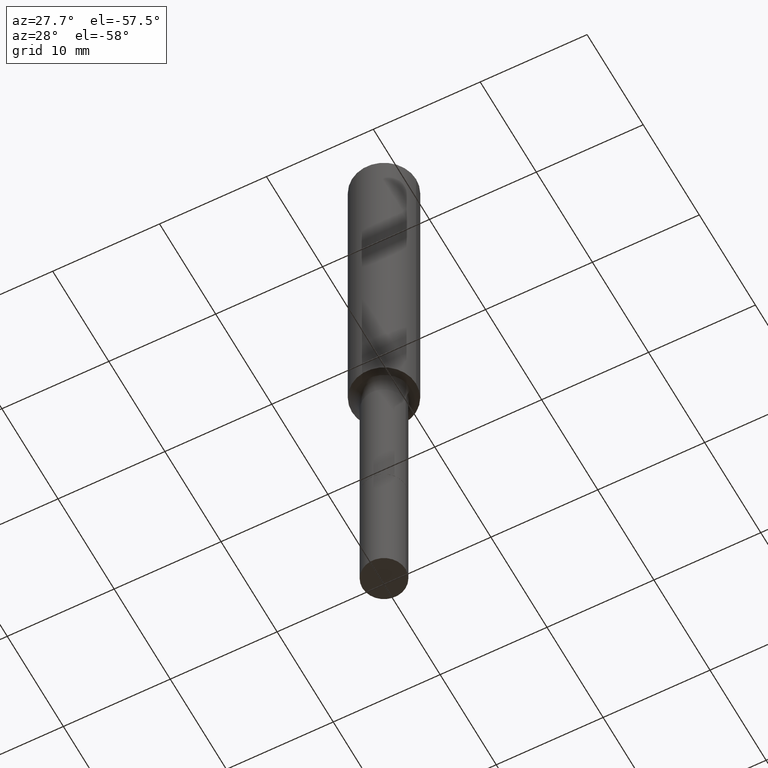
[diagram: clean part render]
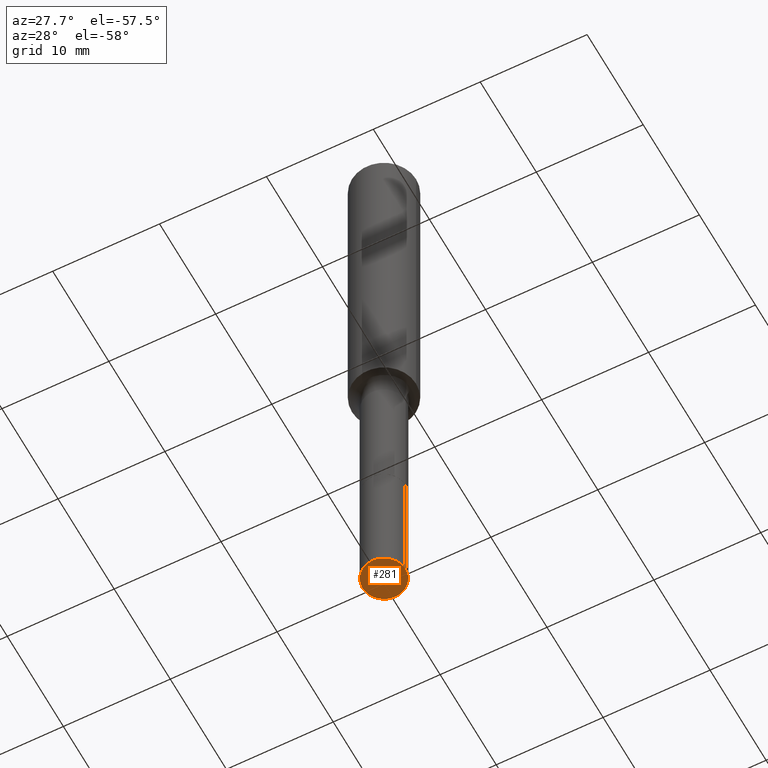
[diagram: same view with one face highlighted and labeled with its STEP entity id]
A machine part, auxiliary view. The second image highlights one B-rep face of the part: STEP entity #281.
In plain terms, the highlighted planar face has unit normal (0, -0, -1).
Its self-contained STEP definition (entity closure, byte-faithful):
#7 = EDGE_CURVE ( 'NONE', #187, #479, #465, .T. ) ;
#40 = DIRECTION ( 'NONE',  ( 1.000000000000000000, -6.982962677686254089E-15, 0.000000000000000000 ) ) ;
#69 = CARTESIAN_POINT ( 'NONE',  ( 5.776686413970529753E-29, -8.247577218615279626E-15, -2.362200000000000077 ) ) ;
#86 = DIRECTION ( 'NONE',  ( -2.445468806185136597E-29, 3.491481338843145583E-15, 1.000000000000000000 ) ) ;
#133 = CIRCLE ( 'NONE', #184, 0.07950000000000014000 ) ;
#170 = CARTESIAN_POINT ( 'NONE',  ( 5.776686413970529753E-29, -8.247577218615279626E-15, -2.362200000000000077 ) ) ;
#184 = AXIS2_PLACEMENT_3D ( 'NONE', #242, #395, #40 ) ;
#187 = VERTEX_POINT ( 'NONE', #346 ) ;
#211 = DIRECTION ( 'NONE',  ( 1.000000000000000000, -6.982962677686254089E-15, 0.000000000000000000 ) ) ;
#225 = AXIS2_PLACEMENT_3D ( 'NONE', #170, #86, #211 ) ;
#229 = ORIENTED_EDGE ( 'NONE', *, *, #377, .F. ) ;
#231 = DIRECTION ( 'NONE',  ( -1.000000000000000000, 6.982962677686265922E-15, -4.876176775795935793E-29 ) ) ;
#242 = CARTESIAN_POINT ( 'NONE',  ( 5.776686413970529753E-29, -8.247577218615279626E-15, -2.362200000000000077 ) ) ;
#281 = ADVANCED_FACE ( 'NONE', ( #314 ), #504, .T. ) ;
#308 = DIRECTION ( 'NONE',  ( 2.438088387897960049E-29, -3.491481338843145188E-15, -1.000000000000000000 ) ) ;
#314 = FACE_OUTER_BOUND ( 'NONE', #349, .T. ) ;
#346 = CARTESIAN_POINT ( 'NONE',  ( -0.07950000000000014000, -6.792368002280995975E-15, -2.362200000000000077 ) ) ;
#349 = EDGE_LOOP ( 'NONE', ( #229, #356 ) ) ;
#356 = ORIENTED_EDGE ( 'NONE', *, *, #7, .F. ) ;
#366 = CARTESIAN_POINT ( 'NONE',  ( 0.07950000000000014000, -8.802722751491336694E-15, -2.362200000000000077 ) ) ;
#377 = EDGE_CURVE ( 'NONE', #479, #187, #133, .T. ) ;
#395 = DIRECTION ( 'NONE',  ( -2.445468806185136597E-29, 3.491481338843145583E-15, 1.000000000000000000 ) ) ;
#465 = CIRCLE ( 'NONE', #225, 0.07950000000000014000 ) ;
#479 = VERTEX_POINT ( 'NONE', #366 ) ;
#495 = AXIS2_PLACEMENT_3D ( 'NONE', #69, #308, #231 ) ;
#504 = PLANE ( 'NONE',  #495 ) ;